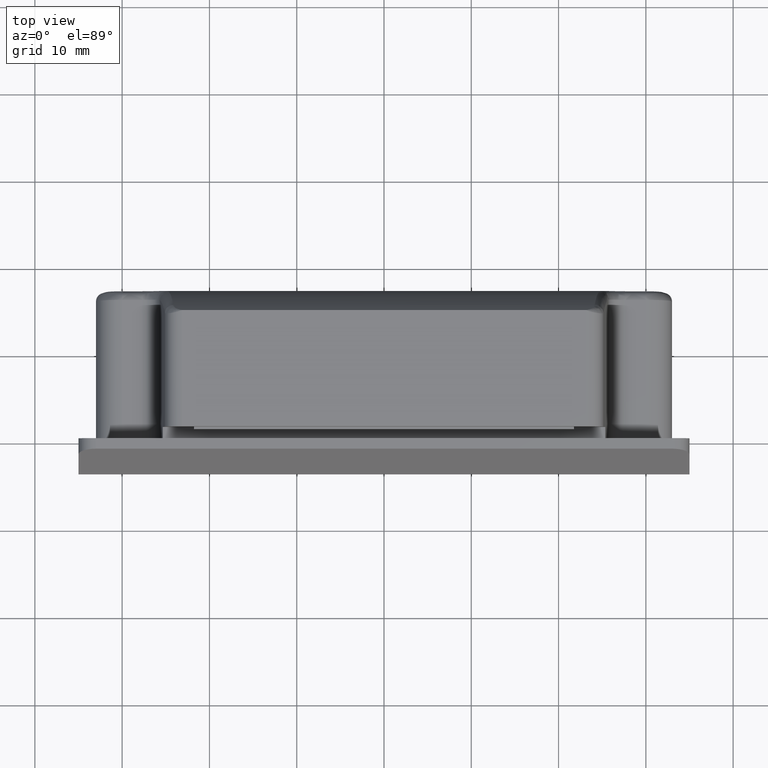
[diagram: clean part render]
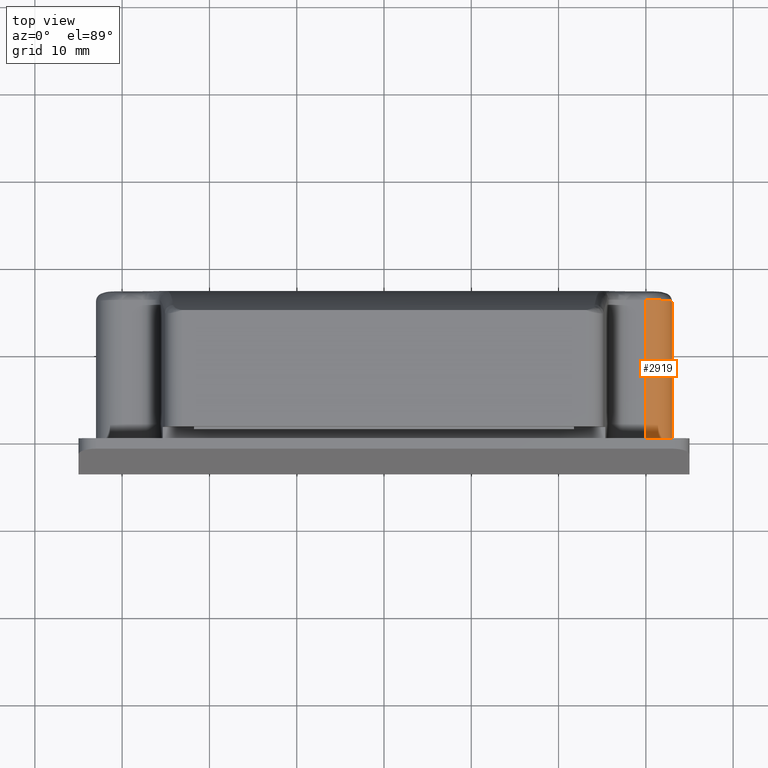
[diagram: same view with one face highlighted and labeled with its STEP entity id]
A machine part, top view. The second image highlights one B-rep face of the part: STEP entity #2919.
In plain terms, the highlighted cylindrical surface (edge-blend (fillet) strip) has radius 3 mm, axis along (0, -1, 0).
Its self-contained STEP definition (entity closure, byte-faithful):
#78 = EDGE_CURVE ( 'NONE', #168, #1479, #3241, .T. ) ;
#82 = CARTESIAN_POINT ( 'NONE',  ( 32.50556332022763000, 15.93436310187116200, 8.445984969596315400 ) ) ;
#120 = AXIS2_PLACEMENT_3D ( 'NONE', #3100, #3058, #2567 ) ;
#126 = VECTOR ( 'NONE', #800, 1000.000000000000000 ) ;
#168 = VERTEX_POINT ( 'NONE', #1227 ) ;
#385 = CARTESIAN_POINT ( 'NONE',  ( 31.65487583326017400, 15.96720639143438300, 9.287743515267962400 ) ) ;
#402 = CARTESIAN_POINT ( 'NONE',  ( 33.00000000000000000, 1000.000000000000000, 6.749999999999920100 ) ) ;
#411 = B_SPLINE_CURVE_WITH_KNOTS ( 'NONE', 3,
 ( #952, #3502, #3529, #1825, #82, #2100, #385, #2385, #676, #2661 ),
 .UNSPECIFIED., .F., .F.,
 ( 4, 2, 2, 2, 4 ),
 ( 0.0000000000000000000, 0.2499999999999990600, 0.4999999999999987800, 0.7499999999999984500, 1.000000000000000000 ),
 .UNSPECIFIED. ) ;
#537 = CARTESIAN_POINT ( 'NONE',  ( 30.00000000000000000, 1000.000000000000000, 6.749999999999920100 ) ) ;
#627 = AXIS2_PLACEMENT_3D ( 'NONE', #537, #2808, #2267 ) ;
#676 = CARTESIAN_POINT ( 'NONE',  ( 30.45289224463703100, 15.98213640070282300, 9.749999999999925400 ) ) ;
#800 = DIRECTION ( 'NONE',  ( 0.0000000000000000000, -1.000000000000000000, 0.0000000000000000000 ) ) ;
#952 = CARTESIAN_POINT ( 'NONE',  ( 33.00000000000000000, 15.83882181415010100, 6.749999999999920100 ) ) ;
#1227 = CARTESIAN_POINT ( 'NONE',  ( 33.00000000000000000, 0.0000000000000000000, 6.749999999999920100 ) ) ;
#1233 = ORIENTED_EDGE ( 'NONE', *, *, #78, .F. ) ;
#1286 = VERTEX_POINT ( 'NONE', #3708 ) ;
#1457 = VECTOR ( 'NONE', #3260, 1000.000000000000000 ) ;
#1479 = VERTEX_POINT ( 'NONE', #1876 ) ;
#1632 = ORIENTED_EDGE ( 'NONE', *, *, #2085, .T. ) ;
#1649 = CYLINDRICAL_SURFACE ( 'NONE', #627, 3.000000000000000000 ) ;
#1774 = EDGE_CURVE ( 'NONE', #1286, #1479, #2511, .T. ) ;
#1825 = CARTESIAN_POINT ( 'NONE',  ( 32.69712352700616300, 15.91943460972893700, 8.112719799974415800 ) ) ;
#1876 = CARTESIAN_POINT ( 'NONE',  ( 30.00000000000000000, 0.0000000000000000000, 9.750000000000000000 ) ) ;
#1884 = FACE_OUTER_BOUND ( 'NONE', #2154, .T. ) ;
#2085 = EDGE_CURVE ( 'NONE', #3030, #1286, #411, .T. ) ;
#2100 = CARTESIAN_POINT ( 'NONE',  ( 31.98461745878627800, 15.95824899272387600, 9.033748259122996100 ) ) ;
#2154 = EDGE_LOOP ( 'NONE', ( #3041, #1632, #2301, #1233 ) ) ;
#2267 = DIRECTION ( 'NONE',  ( 0.0000000000000000000, 0.0000000000000000000, -1.000000000000000000 ) ) ;
#2301 = ORIENTED_EDGE ( 'NONE', *, *, #1774, .T. ) ;
#2302 = LINE ( 'NONE', #402, #1457 ) ;
#2385 = CARTESIAN_POINT ( 'NONE',  ( 30.88905090846632000, 15.97915009542391300, 9.646263913207549800 ) ) ;
#2511 = LINE ( 'NONE', #2773, #126 ) ;
#2567 = DIRECTION ( 'NONE',  ( 0.0000000000000000000, 0.0000000000000000000, 1.000000000000000000 ) ) ;
#2661 = CARTESIAN_POINT ( 'NONE',  ( 30.00000000000000000, 15.98213715926644700, 9.750000000000000000 ) ) ;
#2773 = CARTESIAN_POINT ( 'NONE',  ( 30.00000000000000000, 1000.000000000000000, 9.750000000000000000 ) ) ;
#2808 = DIRECTION ( 'NONE',  ( 0.0000000000000000000, -1.000000000000000000, 0.0000000000000000000 ) ) ;
#2919 = ADVANCED_FACE ( 'NONE', ( #1884 ), #1649, .T. ) ;
#3030 = VERTEX_POINT ( 'NONE', #3205 ) ;
#3041 = ORIENTED_EDGE ( 'NONE', *, *, #3726, .F. ) ;
#3058 = DIRECTION ( 'NONE',  ( -0.0000000000000000000, -1.000000000000000000, -0.0000000000000000000 ) ) ;
#3100 = CARTESIAN_POINT ( 'NONE',  ( 30.00000000000000000, 0.0000000000000000000, 6.749999999999920100 ) ) ;
#3205 = CARTESIAN_POINT ( 'NONE',  ( 33.00000000000000000, 15.83882181415010100, 6.749999999999920100 ) ) ;
#3241 = CIRCLE ( 'NONE', #120, 3.000000000000000000 ) ;
#3260 = DIRECTION ( 'NONE',  ( 0.0000000000000000000, -1.000000000000000000, 0.0000000000000000000 ) ) ;
#3502 = CARTESIAN_POINT ( 'NONE',  ( 33.00000000000001400, 15.86270694643947200, 7.082505918760329400 ) ) ;
#3529 = CARTESIAN_POINT ( 'NONE',  ( 32.94412782460366200, 15.88360653201310200, 7.430875851802030100 ) ) ;
#3708 = CARTESIAN_POINT ( 'NONE',  ( 30.00000000000000000, 15.98213715926644700, 9.750000000000000000 ) ) ;
#3726 = EDGE_CURVE ( 'NONE', #3030, #168, #2302, .T. ) ;